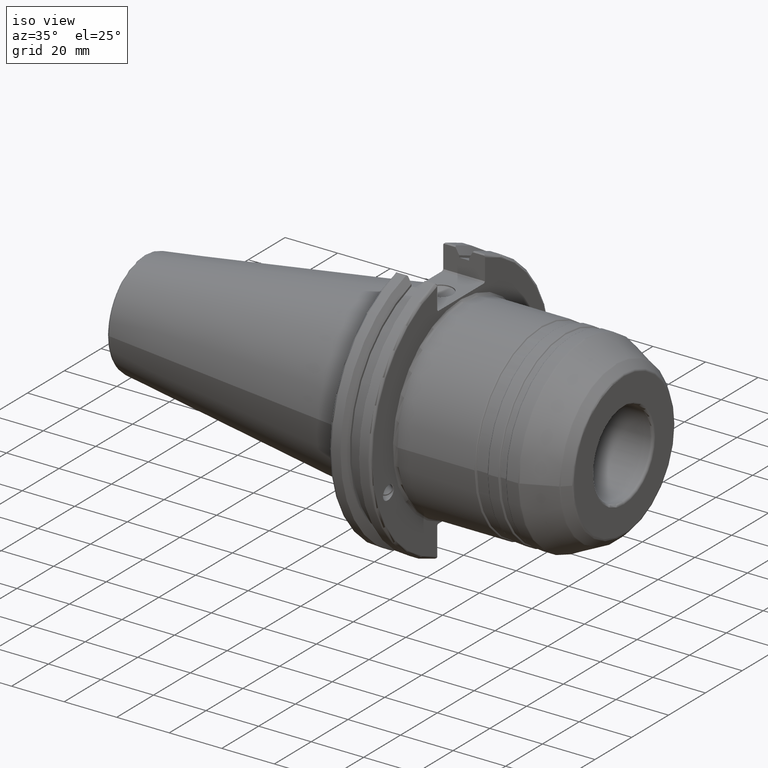
[diagram: clean part render]
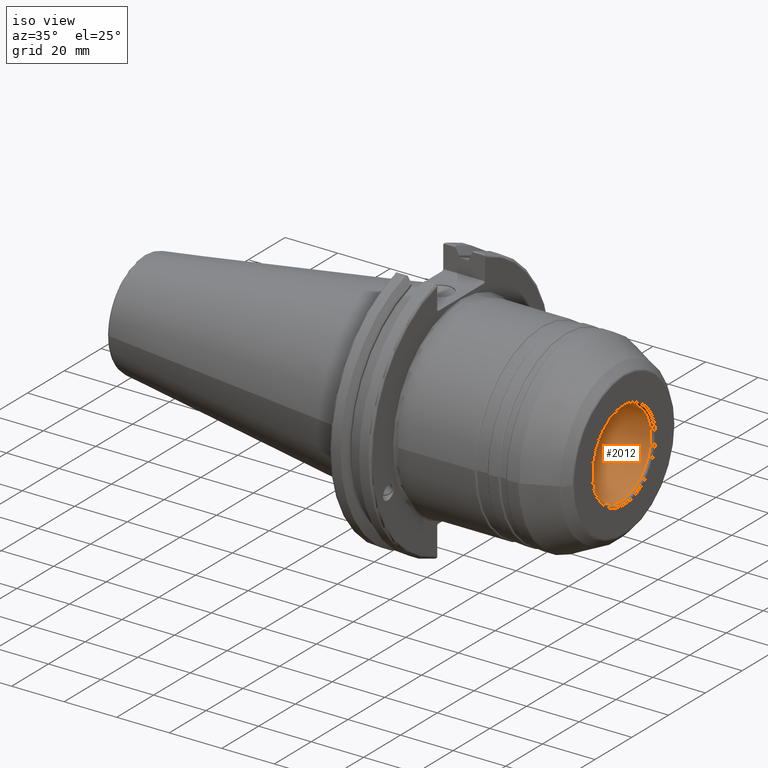
[diagram: same view with one face highlighted and labeled with its STEP entity id]
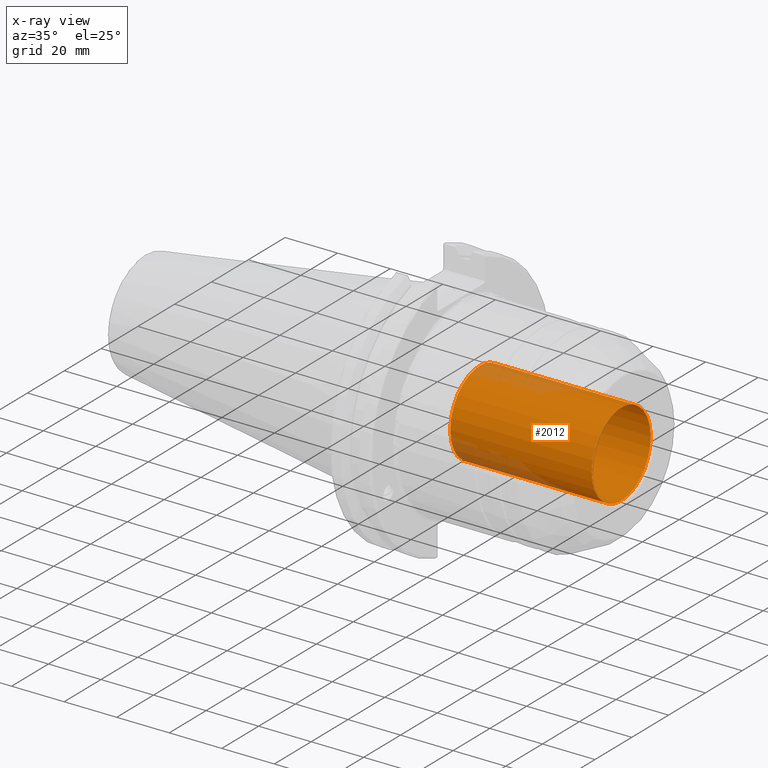
[diagram: x-ray of the same camera — body ghosted, the highlighted face saturated]
A machine part, iso view. The second image highlights one B-rep face of the part: STEP entity #2012.
The next image is the same camera in x-ray: the body ghosted, the highlighted face saturated — about 15% of this face is hidden behind the body in this view.
In plain terms, the highlighted cylindrical surface (bore or boss wall) has radius 16 mm, axis along (-1, 0, 0).
Its self-contained STEP definition (entity closure, byte-faithful):
#163=FACE_OUTER_BOUND('',#266,.T.);
#266=EDGE_LOOP('',(#1331,#1332,#1333,#1334,#1335,#1336,#1337));
#384=LINE('',#3144,#483);
#483=VECTOR('',#2457,16.);
#587=CIRCLE('',#2141,16.);
#588=CIRCLE('',#2142,16.);
#589=CIRCLE('',#2143,16.);
#591=CIRCLE('',#2146,16.);
#592=CIRCLE('',#2147,16.);
#759=VERTEX_POINT('',#3134);
#760=VERTEX_POINT('',#3136);
#761=VERTEX_POINT('',#3138);
#762=VERTEX_POINT('',#3143);
#763=VERTEX_POINT('',#3145);
#995=EDGE_CURVE('',#759,#760,#587,.T.);
#996=EDGE_CURVE('',#760,#761,#588,.T.);
#997=EDGE_CURVE('',#761,#759,#589,.T.);
#999=EDGE_CURVE('',#760,#762,#384,.T.);
#1000=EDGE_CURVE('',#762,#763,#591,.T.);
#1001=EDGE_CURVE('',#763,#762,#592,.T.);
#1331=ORIENTED_EDGE('',*,*,#997,.F.);
#1332=ORIENTED_EDGE('',*,*,#996,.F.);
#1333=ORIENTED_EDGE('',*,*,#999,.T.);
#1334=ORIENTED_EDGE('',*,*,#1000,.T.);
#1335=ORIENTED_EDGE('',*,*,#1001,.T.);
#1336=ORIENTED_EDGE('',*,*,#999,.F.);
#1337=ORIENTED_EDGE('',*,*,#995,.F.);
#1979=CYLINDRICAL_SURFACE('',#2145,16.);
#2012=ADVANCED_FACE('',(#163),#1979,.F.);
#2141=AXIS2_PLACEMENT_3D('',#3137,#2447,#2448);
#2142=AXIS2_PLACEMENT_3D('',#3139,#2449,#2450);
#2143=AXIS2_PLACEMENT_3D('',#3140,#2451,#2452);
#2145=AXIS2_PLACEMENT_3D('',#3142,#2455,#2456);
#2146=AXIS2_PLACEMENT_3D('',#3146,#2458,#2459);
#2147=AXIS2_PLACEMENT_3D('',#3147,#2460,#2461);
#2447=DIRECTION('center_axis',(-1.,0.,0.));
#2448=DIRECTION('ref_axis',(0.,-1.,-1.22464679914735E-16));
#2449=DIRECTION('center_axis',(-1.,0.,0.));
#2450=DIRECTION('ref_axis',(0.,-1.,-1.22464679914735E-16));
#2451=DIRECTION('center_axis',(-1.,0.,0.));
#2452=DIRECTION('ref_axis',(0.,-1.,-1.22464679914735E-16));
#2455=DIRECTION('center_axis',(-1.,0.,0.));
#2456=DIRECTION('ref_axis',(0.,1.,0.));
#2457=DIRECTION('',(-1.,0.,0.));
#2458=DIRECTION('center_axis',(-1.,0.,0.));
#2459=DIRECTION('ref_axis',(0.,0.,1.));
#2460=DIRECTION('center_axis',(-1.,0.,0.));
#2461=DIRECTION('ref_axis',(0.,0.,1.));
#3134=CARTESIAN_POINT('',(80.,-1.95943487863577E-15,-16.));
#3136=CARTESIAN_POINT('',(80.,-16.,1.95943487863577E-15));
#3137=CARTESIAN_POINT('Origin',(80.,0.,0.));
#3138=CARTESIAN_POINT('',(80.,16.,0.));
#3139=CARTESIAN_POINT('Origin',(80.,0.,0.));
#3140=CARTESIAN_POINT('Origin',(80.,0.,0.));
#3142=CARTESIAN_POINT('Origin',(53.5577350269193,0.,0.));
#3143=CARTESIAN_POINT('',(26.1154700538384,-16.,1.95943487863577E-15));
#3144=CARTESIAN_POINT('',(53.5577350269193,-16.,1.95943487863577E-15));
#3145=CARTESIAN_POINT('',(26.1154700538384,16.,0.));
#3146=CARTESIAN_POINT('Origin',(26.1154700538384,0.,0.));
#3147=CARTESIAN_POINT('Origin',(26.1154700538384,0.,0.));